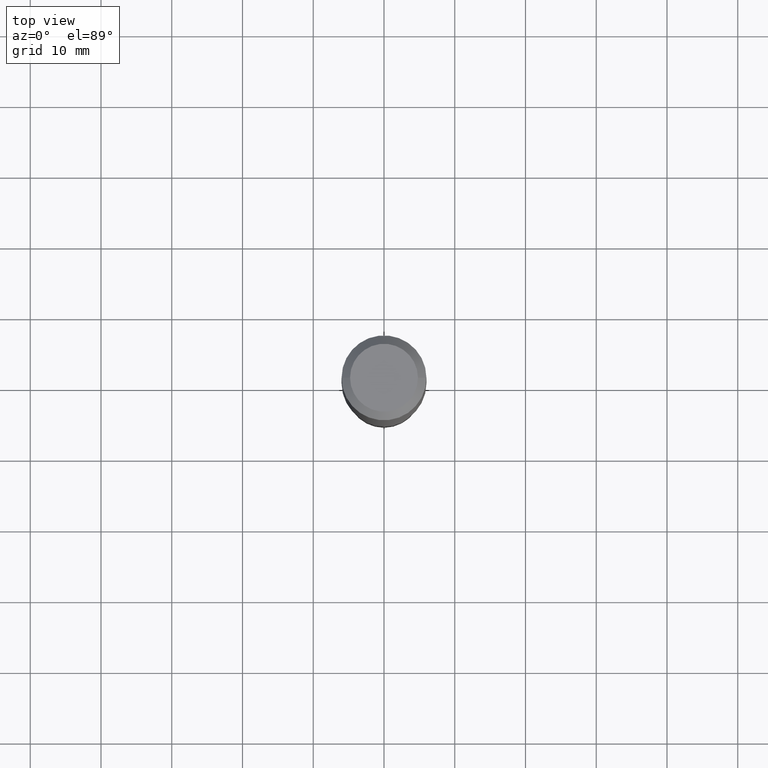
[diagram: clean part render]
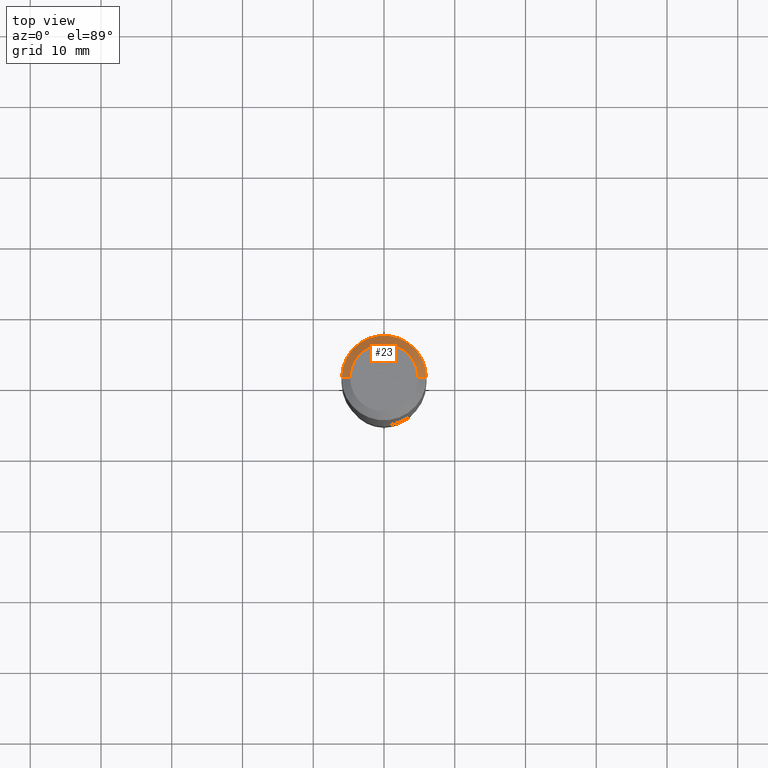
[diagram: same view with one face highlighted and labeled with its STEP entity id]
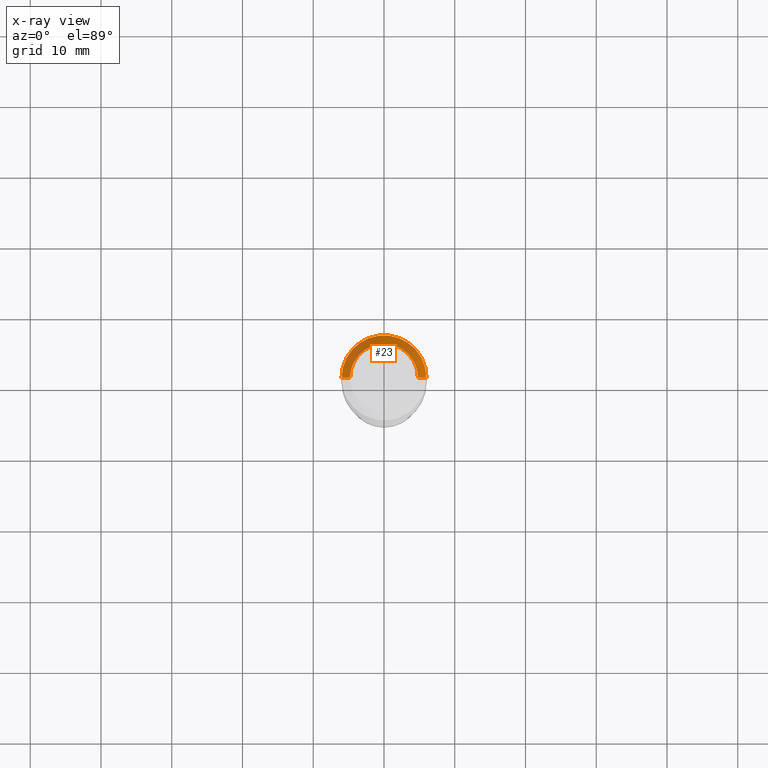
[diagram: x-ray of the same camera — body ghosted, the highlighted face saturated]
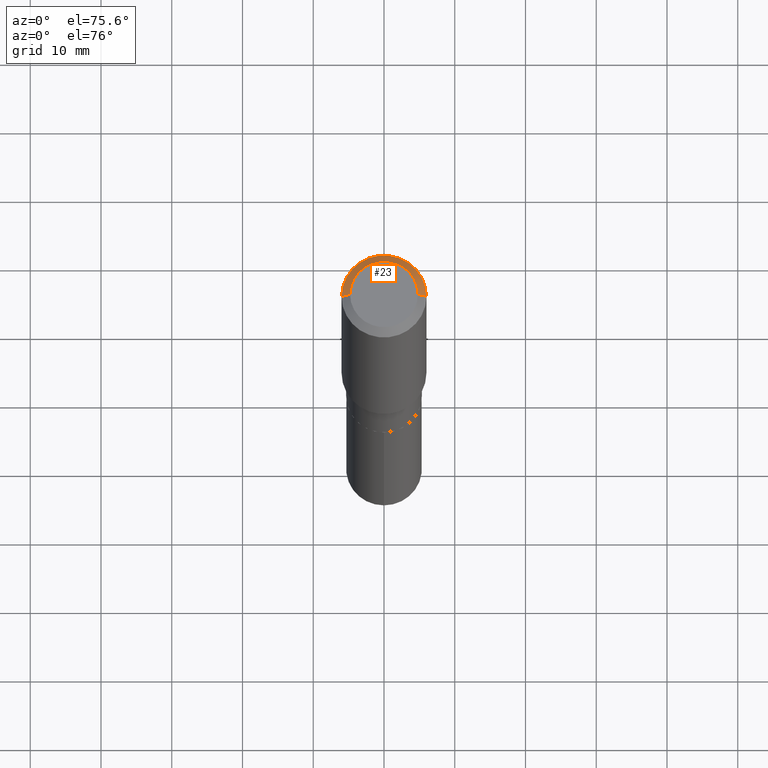
[diagram: same view with one face highlighted and labeled with its STEP entity id]
A machine part, top view. The second image highlights one B-rep face of the part: STEP entity #23.
The next image is the same camera in x-ray: the body ghosted, the highlighted face saturated — about 0% of this face is hidden behind the body in this view.
A second angle (auxiliary view) of the same face is appended — the face is thin or edge-on in the first view.
In plain terms, the highlighted conical surface has half-angle 45 deg.
Its self-contained STEP definition (entity closure, byte-faithful):
#15 = CONICAL_SURFACE ( 'NONE', #163, 0.2361999999999999933, 0.7853981633974452814 ) ;
#23 = ADVANCED_FACE ( 'NONE', ( #237 ), #15, .T. ) ;
#24 = ORIENTED_EDGE ( 'NONE', *, *, #217, .F. ) ;
#30 = CARTESIAN_POINT ( 'NONE',  ( 0.2361999999999999933, -1.785387205520586782E-15, -0.04724000000000028177 ) ) ;
#47 = DIRECTION ( 'NONE',  ( 2.445468806185136597E-29, -3.491481338843145583E-15, -1.000000000000000000 ) ) ;
#59 = DIRECTION ( 'NONE',  ( 0.7071067811865453523, -7.319954787623248157E-15, -0.7071067811865496822 ) ) ;
#76 = VECTOR ( 'NONE', #59, 39.37007874015748143 ) ;
#80 = LINE ( 'NONE', #440, #334 ) ;
#86 = CARTESIAN_POINT ( 'NONE',  ( -9.427742298522546243E-47, 1.346031739168365344E-32, 3.855188123715862256E-18 ) ) ;
#100 = EDGE_CURVE ( 'NONE', #427, #374, #216, .T. ) ;
#110 = CARTESIAN_POINT ( 'NONE',  ( 1.155239464041865506E-30, -1.649375784469511859E-16, -0.04724000000000028177 ) ) ;
#123 = EDGE_CURVE ( 'NONE', #230, #374, #80, .T. ) ;
#132 = DIRECTION ( 'NONE',  ( -2.445468806185136597E-29, 3.491481338843145583E-15, 1.000000000000000000 ) ) ;
#140 = ORIENTED_EDGE ( 'NONE', *, *, #100, .T. ) ;
#144 = CARTESIAN_POINT ( 'NONE',  ( 0.2361999999999999933, -1.814313362916447440E-15, -0.04724000000000028177 ) ) ;
#163 = AXIS2_PLACEMENT_3D ( 'NONE', #403, #47, #266 ) ;
#179 = CARTESIAN_POINT ( 'NONE',  ( -0.2361999999999999933, -1.479376323577688976E-15, -0.04724000000000028177 ) ) ;
#182 = VERTEX_POINT ( 'NONE', #332 ) ;
#190 = CIRCLE ( 'NONE', #299, 0.1889600000000000168 ) ;
#202 = DIRECTION ( 'NONE',  ( 1.000000000000000000, -6.982962677686266711E-15, 0.000000000000000000 ) ) ;
#216 = CIRCLE ( 'NONE', #480, 0.2361999999999999933 ) ;
#217 = EDGE_CURVE ( 'NONE', #182, #230, #190, .T. ) ;
#230 = VERTEX_POINT ( 'NONE', #292 ) ;
#237 = FACE_OUTER_BOUND ( 'NONE', #323, .T. ) ;
#266 = DIRECTION ( 'NONE',  ( -1.000000000000000000, 6.982962677686266711E-15, 0.000000000000000000 ) ) ;
#272 = ORIENTED_EDGE ( 'NONE', *, *, #363, .T. ) ;
#287 = DIRECTION ( 'NONE',  ( 1.000000000000000000, -6.982962677686266711E-15, 4.876185090822587894E-29 ) ) ;
#292 = CARTESIAN_POINT ( 'NONE',  ( -0.1889600000000000168, 1.401969416799070942E-15, 3.855188123706346622E-18 ) ) ;
#299 = AXIS2_PLACEMENT_3D ( 'NONE', #86, #132, #287 ) ;
#315 = DIRECTION ( 'NONE',  ( -2.445468806185136597E-29, 3.491481338843145583E-15, 1.000000000000000000 ) ) ;
#323 = EDGE_LOOP ( 'NONE', ( #24, #272, #140, #324 ) ) ;
#324 = ORIENTED_EDGE ( 'NONE', *, *, #123, .F. ) ;
#332 = CARTESIAN_POINT ( 'NONE',  ( 0.1889600000000000168, -1.540873453589747738E-15, 3.855188123725863225E-18 ) ) ;
#334 = VECTOR ( 'NONE', #364, 39.37007874015748143 ) ;
#363 = EDGE_CURVE ( 'NONE', #182, #427, #488, .T. ) ;
#364 = DIRECTION ( 'NONE',  ( -0.7071067811865453523, 2.468850131082234184E-15, -0.7071067811865496822 ) ) ;
#374 = VERTEX_POINT ( 'NONE', #179 ) ;
#403 = CARTESIAN_POINT ( 'NONE',  ( 1.155239464041865506E-30, -1.649375784469511859E-16, -0.04724000000000028177 ) ) ;
#427 = VERTEX_POINT ( 'NONE', #144 ) ;
#440 = CARTESIAN_POINT ( 'NONE',  ( -0.2361999999999999933, 1.484438206022545019E-15, -0.04724000000000028177 ) ) ;
#480 = AXIS2_PLACEMENT_3D ( 'NONE', #110, #315, #202 ) ;
#488 = LINE ( 'NONE', #30, #76 ) ;